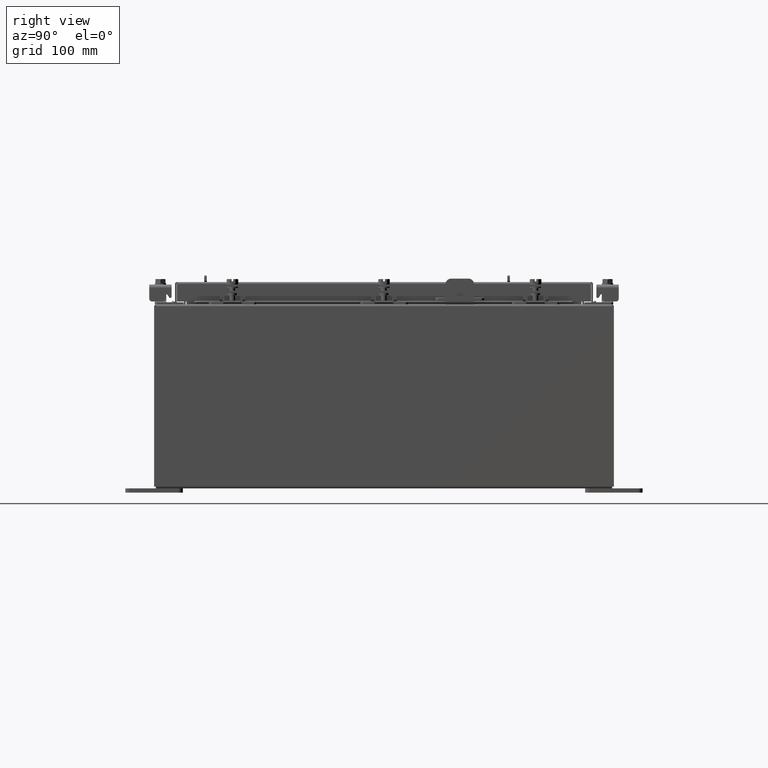
[diagram: clean part render]
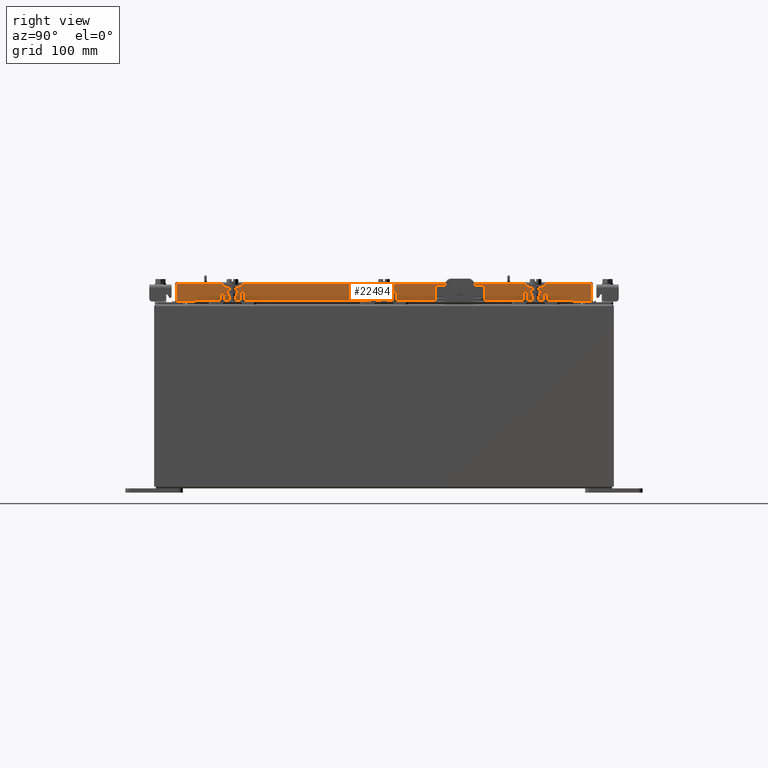
[diagram: same view with one face highlighted and labeled with its STEP entity id]
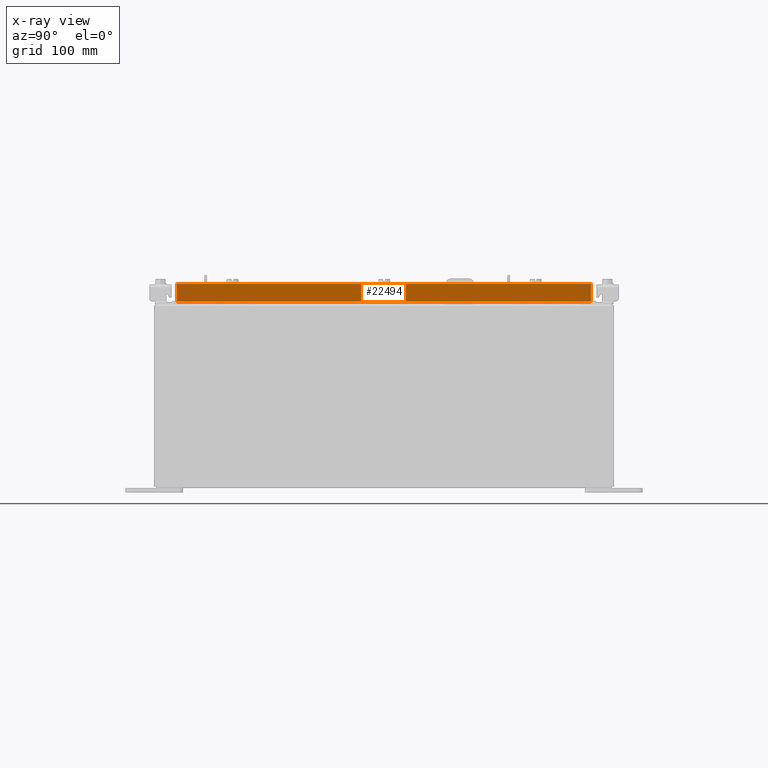
[diagram: x-ray of the same camera — body ghosted, the highlighted face saturated]
A machine part, right view. The second image highlights one B-rep face of the part: STEP entity #22494.
The next image is the same camera in x-ray: the body ghosted, the highlighted face saturated — about 0% of this face is hidden behind the body in this view.
In plain terms, the highlighted planar face has unit normal (1, 0, 0).
Its self-contained STEP definition (entity closure, byte-faithful):
#759 = VERTEX_POINT ( 'NONE', #4038 ) ;
#959 = CARTESIAN_POINT ( 'NONE',  ( 9.094000000000001200, 9.005157864376268900, -0.08769999999999918100 ) ) ;
#1238 = PLANE ( 'NONE',  #19928 ) ;
#1242 = DIRECTION ( 'NONE',  ( 0.0000000000000000000, -1.000000000000000000, 0.0000000000000000000 ) ) ;
#1460 = VERTEX_POINT ( 'NONE', #7773 ) ;
#1614 = LINE ( 'NONE', #2772, #20166 ) ;
#1808 = LINE ( 'NONE', #19461, #14631 ) ;
#1875 = VECTOR ( 'NONE', #14747, 39.37007874015748100 ) ;
#2408 = LINE ( 'NONE', #13008, #1875 ) ;
#2692 = CARTESIAN_POINT ( 'NONE',  ( 9.094000000000003000, -9.094000000000003000, -0.8499999999999999800 ) ) ;
#2772 = CARTESIAN_POINT ( 'NONE',  ( 9.094000000000001200, 8.255157864376267100, -0.8500000000000010900 ) ) ;
#3753 = ORIENTED_EDGE ( 'NONE', *, *, #16046, .F. ) ;
#3878 = VERTEX_POINT ( 'NONE', #18934 ) ;
#4038 = CARTESIAN_POINT ( 'NONE',  ( 9.094000000000003000, 9.005157864376274200, -0.8499999999999999800 ) ) ;
#4266 = CARTESIAN_POINT ( 'NONE',  ( 9.094000000000001200, -5.269035934039632300E-018, -0.08769999999999918100 ) ) ;
#4569 = DIRECTION ( 'NONE',  ( 0.0000000000000000000, -1.000000000000000000, 0.0000000000000000000 ) ) ;
#4651 = LINE ( 'NONE', #4266, #8738 ) ;
#4752 = CARTESIAN_POINT ( 'NONE',  ( 9.094000000000001200, 0.0000000000000000000, 2.622574073917692700E-014 ) ) ;
#5054 = EDGE_CURVE ( 'NONE', #18774, #1460, #16075, .T. ) ;
#6000 = DIRECTION ( 'NONE',  ( -1.693590113897317100E-031, -1.000000000000000000, 6.008022858289562200E-017 ) ) ;
#6066 = FACE_OUTER_BOUND ( 'NONE', #21298, .T. ) ;
#6203 = VECTOR ( 'NONE', #1242, 39.37007874015748100 ) ;
#6435 = CARTESIAN_POINT ( 'NONE',  ( 9.094000000000001200, -8.255157864376263500, -0.8500000000000010900 ) ) ;
#6519 = DIRECTION ( 'NONE',  ( 1.000000000000000000, 0.0000000000000000000, 2.818880942772360100E-015 ) ) ;
#7569 = CARTESIAN_POINT ( 'NONE',  ( 9.094000000000001200, 9.005157864376267100, 8.851187499472213200E-014 ) ) ;
#7773 = CARTESIAN_POINT ( 'NONE',  ( 9.094000000000003000, -9.005157864376261800, -0.8499999999999999800 ) ) ;
#8107 = ORIENTED_EDGE ( 'NONE', *, *, #10197, .T. ) ;
#8366 = LINE ( 'NONE', #7569, #17131 ) ;
#8738 = VECTOR ( 'NONE', #6000, 39.37007874015748100 ) ;
#10070 = EDGE_CURVE ( 'NONE', #1460, #3878, #1808, .T. ) ;
#10197 = EDGE_CURVE ( 'NONE', #759, #21967, #8366, .T. ) ;
#11836 = ORIENTED_EDGE ( 'NONE', *, *, #17899, .T. ) ;
#13008 = CARTESIAN_POINT ( 'NONE',  ( 9.094000000000003000, -9.094000000000003000, -0.8499999999999999800 ) ) ;
#14631 = VECTOR ( 'NONE', #15983, 39.37007874015748100 ) ;
#14747 = DIRECTION ( 'NONE',  ( 0.0000000000000000000, -1.000000000000000000, 0.0000000000000000000 ) ) ;
#14783 = CARTESIAN_POINT ( 'NONE',  ( 9.094000000000001200, 8.255157864376267100, -0.8500000000000010900 ) ) ;
#14993 = ORIENTED_EDGE ( 'NONE', *, *, #18624, .F. ) ;
#15983 = DIRECTION ( 'NONE',  ( -2.818880942772360100E-015, -6.982962677686267500E-015, 1.000000000000000000 ) ) ;
#16046 = EDGE_CURVE ( 'NONE', #19403, #18774, #1614, .T. ) ;
#16075 = LINE ( 'NONE', #2692, #6203 ) ;
#17131 = VECTOR ( 'NONE', #18040, 39.37007874015748100 ) ;
#17899 = EDGE_CURVE ( 'NONE', #21967, #3878, #4651, .T. ) ;
#18040 = DIRECTION ( 'NONE',  ( -2.818880942772360100E-015, -6.982962677686267500E-015, 1.000000000000000000 ) ) ;
#18624 = EDGE_CURVE ( 'NONE', #759, #19403, #2408, .T. ) ;
#18720 = DIRECTION ( 'NONE',  ( 2.818880942772360100E-015, 0.0000000000000000000, -1.000000000000000000 ) ) ;
#18774 = VERTEX_POINT ( 'NONE', #6435 ) ;
#18934 = CARTESIAN_POINT ( 'NONE',  ( 9.094000000000001200, -9.005157864376267100, -0.08769999999999918100 ) ) ;
#19403 = VERTEX_POINT ( 'NONE', #14783 ) ;
#19461 = CARTESIAN_POINT ( 'NONE',  ( 9.094000000000001200, -9.005157864376267100, -0.07470000000000015500 ) ) ;
#19928 = AXIS2_PLACEMENT_3D ( 'NONE', #4752, #6519, #18720 ) ;
#20166 = VECTOR ( 'NONE', #4569, 39.37007874015748100 ) ;
#21298 = EDGE_LOOP ( 'NONE', ( #22231, #21632, #3753, #14993, #8107, #11836 ) ) ;
#21632 = ORIENTED_EDGE ( 'NONE', *, *, #5054, .F. ) ;
#21967 = VERTEX_POINT ( 'NONE', #959 ) ;
#22231 = ORIENTED_EDGE ( 'NONE', *, *, #10070, .F. ) ;
#22494 = ADVANCED_FACE ( 'NONE', ( #6066 ), #1238, .T. ) ;